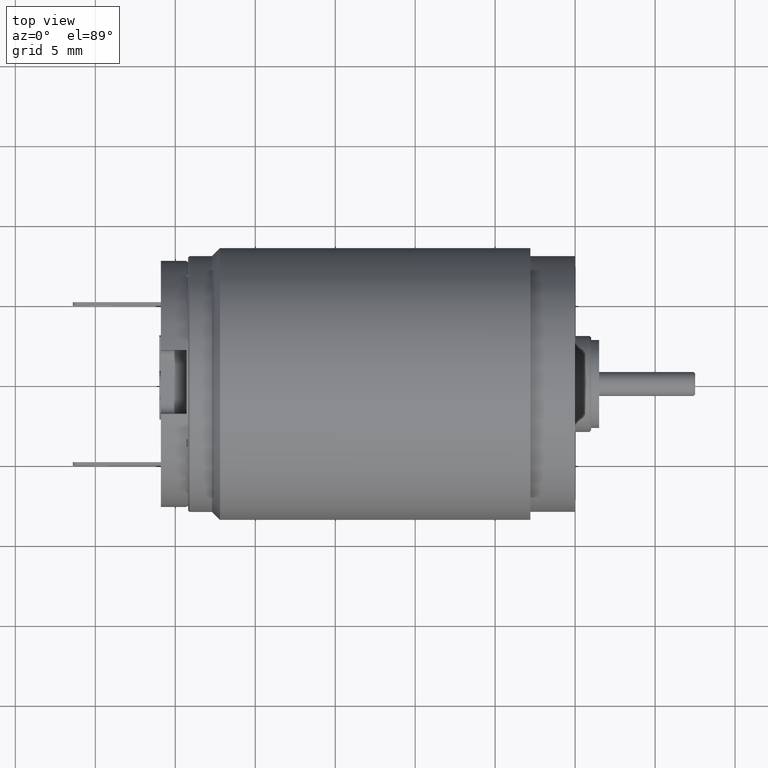
[diagram: clean part render]
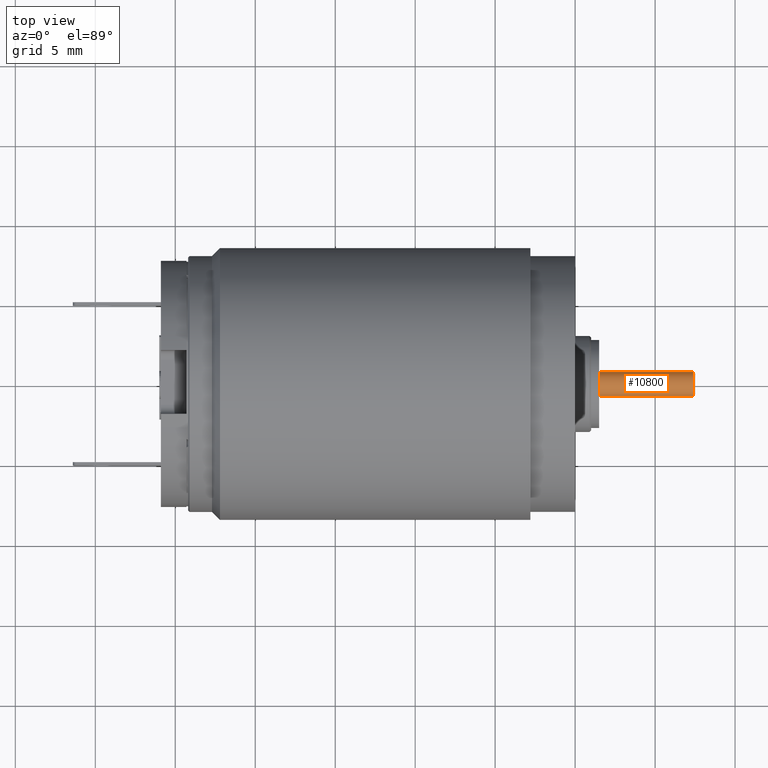
[diagram: same view with one face highlighted and labeled with its STEP entity id]
A machine part, top view. The second image highlights one B-rep face of the part: STEP entity #10800.
In plain terms, the highlighted cylindrical surface (edge-blend (fillet) strip) has radius 0.75 mm, axis along (-1, 0, 0).
Its self-contained STEP definition (entity closure, byte-faithful):
#3717=CARTESIAN_POINT('',(1.5E0,0.E0,0.E0));
#3718=DIRECTION('',(1.E0,0.E0,0.E0));
#3719=DIRECTION('',(0.E0,1.E0,0.E0));
#3720=AXIS2_PLACEMENT_3D('',#3717,#3718,#3719);
#3735=CARTESIAN_POINT('',(7.4E0,0.E0,0.E0));
#3736=DIRECTION('',(-1.E0,0.E0,0.E0));
#3737=DIRECTION('',(0.E0,-1.E0,0.E0));
#3738=AXIS2_PLACEMENT_3D('',#3735,#3736,#3737);
#3740=DIRECTION('',(-1.E0,-7.453380844806E-10,-9.534226135868E-10));
#3741=VECTOR('',#3740,5.900000004397E0);
#3742=CARTESIAN_POINT('',(7.400000004397E0,-7.499999956025E-1,
5.625193313332E-9));
#3743=LINE('',#3742,#3741);
#3744=DIRECTION('',(-1.E0,7.453383291060E-10,9.534225865139E-10));
#3745=VECTOR('',#3744,5.900000004397E0);
#3746=CARTESIAN_POINT('',(7.400000004397E0,7.499999956025E-1,
-5.625193264625E-9));
#3747=LINE('',#3746,#3745);
#5372=CARTESIAN_POINT('',(1.5E0,7.5E-1,0.E0));
#5373=CARTESIAN_POINT('',(1.5E0,-7.5E-1,0.E0));
#5374=VERTEX_POINT('',#5372);
#5375=VERTEX_POINT('',#5373);
#5448=CARTESIAN_POINT('',(7.4E0,-7.5E-1,0.E0));
#5449=CARTESIAN_POINT('',(7.4E0,7.5E-1,0.E0));
#5450=VERTEX_POINT('',#5448);
#5451=VERTEX_POINT('',#5449);
#10789=CARTESIAN_POINT('',(9.17E0,0.E0,0.E0));
#10790=DIRECTION('',(-1.E0,0.E0,0.E0));
#10791=DIRECTION('',(0.E0,1.E0,0.E0));
#10792=AXIS2_PLACEMENT_3D('',#10789,#10790,#10791);
#10793=CYLINDRICAL_SURFACE('',#10792,7.5E-1);
#10794=ORIENTED_EDGE('',*,*,#10780,.F.);
#10795=ORIENTED_EDGE('',*,*,#10755,.T.);
#10796=ORIENTED_EDGE('',*,*,#10740,.F.);
#10797=ORIENTED_EDGE('',*,*,#10752,.F.);
#10798=EDGE_LOOP('',(#10794,#10795,#10796,#10797));
#10799=FACE_OUTER_BOUND('',#10798,.F.);
#10800=ADVANCED_FACE('',(#10799),#10793,.T.);
#3721=CIRCLE('',#3720,7.5E-1);
#3739=CIRCLE('',#3738,7.5E-1);
#10740=EDGE_CURVE('',#5374,#5375,#3721,.T.);
#10752=EDGE_CURVE('',#5451,#5374,#3747,.T.);
#10755=EDGE_CURVE('',#5450,#5375,#3743,.T.);
#10780=EDGE_CURVE('',#5450,#5451,#3739,.T.);